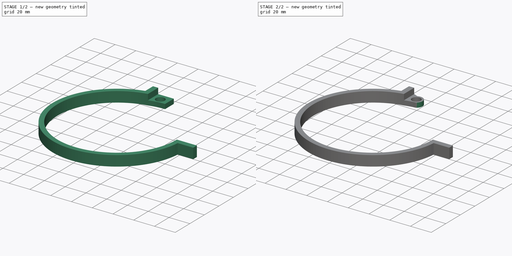
[diagram: build sequence overview — one tinted view per stage of 2, left to right]
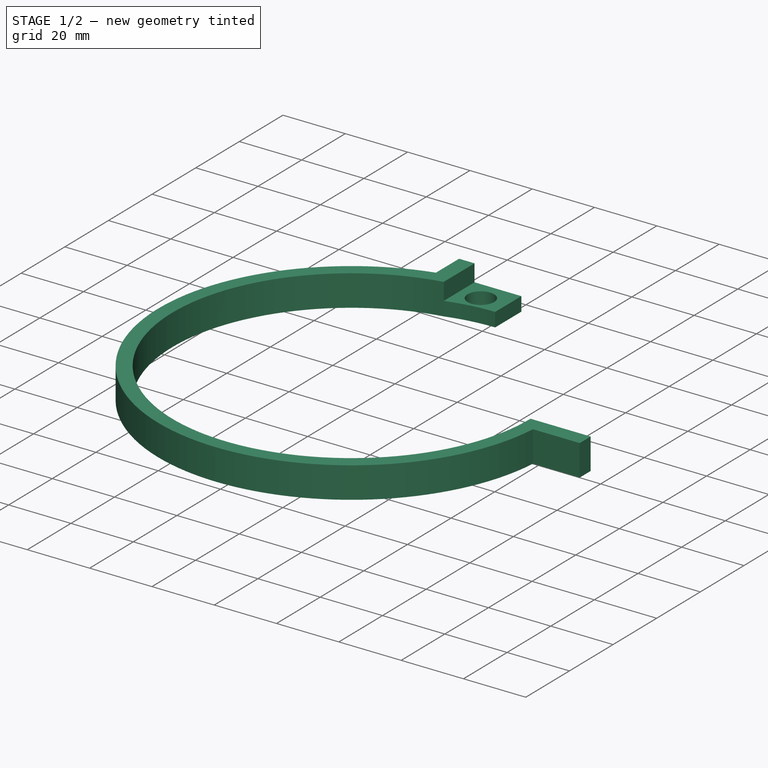
[diagram: stage 1 of 2 — iso view after this stage's code; geometry added in this stage tinted green]
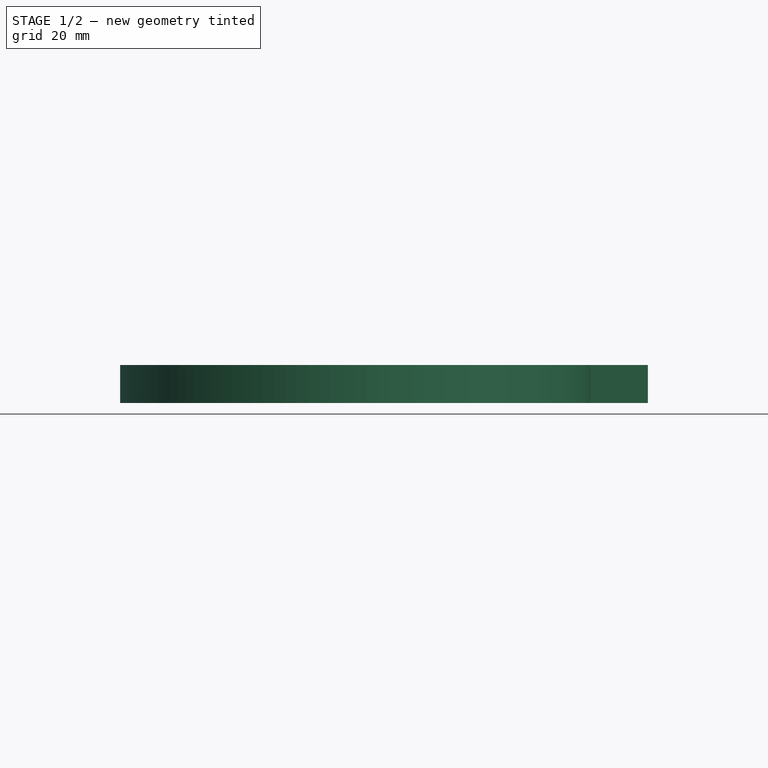
[diagram: stage 1 of 2 — front view after this stage's code; geometry added in this stage tinted green]
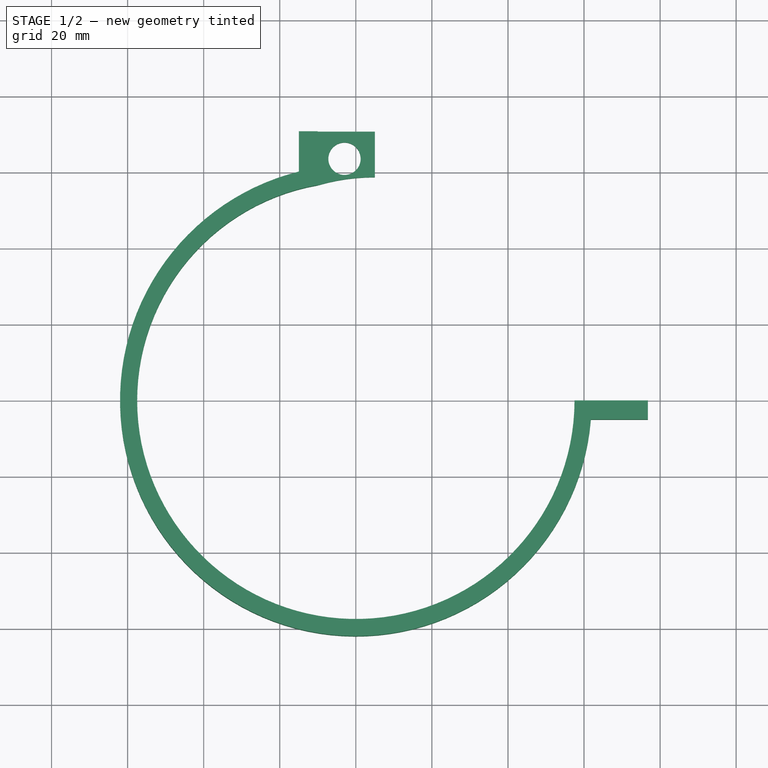
[diagram: stage 1 of 2 — top view after this stage's code; geometry added in this stage tinted green]
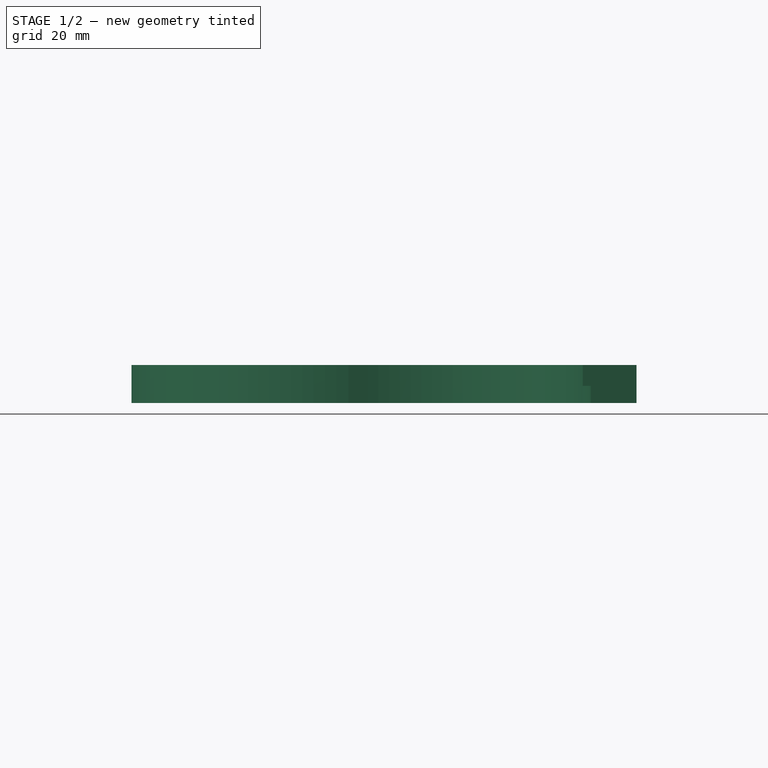
[diagram: stage 1 of 2 — right view after this stage's code; geometry added in this stage tinted green]
FCSTD DOCUMENT  (FreeCAD 1.0R39109 (Git))
Label: close_winds2
License: All rights reserved
LicenseURL: https://en.wikipedia.org/wiki/All_rights_reserved
objects: Sketcher::SketchObject×3, PartDesign::Pocket×2, PartDesign::Pad×1, PartDesign::Body×1
note: 16 computed .brp shape members not serialized (recipe doc carries the construction recipe); baked Part::Feature solids carry a one-line shape summary decoded from their .brp

FEATURE [Sketcher::SketchObject] Sketch
  ArcFitTolerance = 1e-06
  AttachmentSupport = -> [XY_Plane]
  FullyConstrained = true
  MakeInternals = false
  MapMode = 5
  sketch-geometry (19):
    g0: ArcOfCircle [constr] CenterX=0 CenterY=-2.82e-14 CenterZ=0 NormalX=0 NormalY=0 NormalZ=1 AngleXU=0 Radius=57.5 StartAngle=0 EndAngle=1.74533
    g1: LineSegment [constr] StartX=57.5 StartY=-2.82e-14 StartZ=0 EndX=76.7981 EndY=-2.82e-14 EndZ=0
    g2: LineSegment [constr] StartX=76.7981 StartY=-2.82e-14 StartZ=0 EndX=76.7981 EndY=5 EndZ=0
    g3: LineSegment [constr] StartX=76.7981 StartY=5 StartZ=0 EndX=61.7981 EndY=5 EndZ=0
    g4: LineSegment [constr] StartX=-9.98476 StartY=56.6264 StartZ=0 EndX=-9.98476 EndY=70.6264 EndZ=0
    g5: LineSegment [constr] StartX=-9.98476 StartY=70.6264 StartZ=0 EndX=0 EndY=70.6264 EndZ=0
    g6: LineSegment [constr] StartX=0 StartY=70.6264 StartZ=0 EndX=11.4479 EndY=60.9339 EndZ=0
    g7: ArcOfCircle [constr] CenterX=0 CenterY=-2.82e-14 CenterZ=0 NormalX=0 NormalY=0 NormalZ=1 AngleXU=0 Radius=62 StartAngle=0.0807328 EndAngle=1.38509
    g8: Circle [constr] CenterX=-2.98476 CenterY=63.6264 CenterZ=0 NormalX=0 NormalY=0 NormalZ=1 AngleXU=0 Radius=4.25
    g9: ArcOfCircle CenterX=0 CenterY=-2.82e-14 CenterZ=0 NormalX=0 NormalY=0 NormalZ=1 AngleXU=0 Radius=57.5 StartAngle=1.74533 EndAngle=6.28319
    g10: LineSegment StartX=57.5 StartY=-2.82e-14 StartZ=0 EndX=76.7981 EndY=-2.82e-14 EndZ=0
    g11: LineSegment StartX=76.7981 StartY=-2.82e-14 StartZ=0 EndX=76.7981 EndY=-5 EndZ=0
    g12: LineSegment StartX=76.7981 StartY=-5 StartZ=0 EndX=61.7981 EndY=-5 EndZ=0
    g13: ArcOfCircle CenterX=0 CenterY=-2.82e-14 CenterZ=0 NormalX=0 NormalY=0 NormalZ=1 AngleXU=0 Radius=62 StartAngle=1.8149 EndAngle=6.20245
    g14: Circle CenterX=-2.98476 CenterY=63.6264 CenterZ=0 NormalX=0 NormalY=0 NormalZ=1 AngleXU=0 Radius=4.25
    g15: LineSegment StartX=-14.9848 StartY=60.1619 StartZ=0 EndX=-14.9848 EndY=70.7572 EndZ=0
    g16: LineSegment StartX=-14.9848 StartY=70.7572 StartZ=0 EndX=5.01524 EndY=70.7572 EndZ=0
    g17: LineSegment StartX=5.01524 StartY=70.7572 StartZ=0 EndX=5.01524 EndY=58.7572 EndZ=0
    g18: ArcOfCircle CenterX=5 CenterY=5 CenterZ=0 NormalX=0 NormalY=0 NormalZ=1 AngleXU=0 Radius=53.7572 StartAngle=1.57051 EndAngle=1.85329
  constraints (57):
    c: Angle(g0) = 1.74533
    c: Coincident(g0,g-1)
    c: PointOnObject(g0,g-1)
    c: Radius(g0) = 57.5
    c: Coincident(g0,g1)
    c: Coincident(g1,g2)
    c: Coincident(g2,g3)
    c: Coincident(g0,g4)
    c: Coincident(g4,g5)
    c: Horizontal(g5)
    c: Coincident(g5,g6)
    c: Coincident(g7,g0)
    c: Coincident(g7,g3)
    c: Coincident(g7,g6)
    c: Diameter(g8) = 8.5
    c: DistanceX(g4,g8) = 7
    c: DistanceY(g8,g4) = 7
    c: Distance(g6,g6) = 15
    c: Vertical(g4)
    c: DistanceY(g4,g4) = 14
    c: Horizontal(g1)
    c: Horizontal(g3)
    c: Radius(g7) = 62
    c: DistanceX(g3,g3) = 15
    c: DistanceY(g2,g2) = 5
    c: Vertical(g2)
    c: Equal(g9,g0)
    c: Coincident(g9,g0)
    c: Angle(g9) = 4.53786
    c: Horizontal(g9,g0)
    c: Coincident(g9,g10)
    c: Coincident(g10,g11)
    c: Vertical(g11)
    c: Coincident(g11,g12)
    c: Horizontal(g10)
    c: Horizontal(g12)
    c: Vertical(g10,g2)
    c: Equal(g11,g2)
    c: Coincident(g13,g0)
    c: Coincident(g13,g12)
    c: Vertical(g12,g3)
    c: Coincident(g14,g8)
    c: Diameter(g14) = 8.5
    c: Coincident(g15,g13)
    c: Vertical(g15)
    c: Coincident(g15,g16)
    c: Horizontal(g16)
    c: Coincident(g16,g17)
    c: Vertical(g17)
    c: Coincident(g18,g17)
    c: Coincident(g18,g9)
    c: DistanceY(g-1,g18) = 5
    c: DistanceX(g-1,g18) = 5
    c: DistanceX(g13,g0) = 5
    c: DistanceX(g16,g16) = 20
    c: DistanceY(g17,g17) = 12
    c: PointOnObject(g5,g-2)
FEATURE [PartDesign::Pad] Pad
  Direction = (0,0,1)
  Length = 10
  Length2 = 10
  Profile = -> Sketch
  ReferenceAxis = -> Sketch [N_Axis]
  Refine = true
  Suppressed = false
  Type = 0
FEATURE [Sketcher::SketchObject] Sketch001
  ArcFitTolerance = 1e-06
  AttachmentSupport = -> [Pad]
  FullyConstrained = true
  MakeInternals = false
  MapMode = 5
  Placement = pos=(0,0,10) rot=(0,0,1;0rad)
  sketch-geometry (4):
    g0: ArcOfCircle CenterX=5 CenterY=5 CenterZ=0 NormalX=0 NormalY=0 NormalZ=1 AngleXU=0 Radius=53.5 StartAngle=1.56893 EndAngle=1.85516
    g1: LineSegment StartX=-10.0093 StartY=56.3514 StartZ=0 EndX=-10.0093 EndY=70.9999 EndZ=0
    g2: LineSegment StartX=-10.0093 StartY=70.9999 StartZ=0 EndX=5.1 EndY=70.9999 EndZ=0
    g3: LineSegment StartX=5.1 StartY=70.9999 StartZ=0 EndX=5.1 EndY=58.4999 EndZ=0
  constraints (13):
    c: DistanceX(g-1,g0) = 5
    c: DistanceY(g-1,g0) = 5
    c: Radius(g0) = 53.5
    c: Angle(g0) = 0.286234
    c: Coincident(g0,g1)
    c: Coincident(g1,g2)
    c: Horizontal(g2)
    c: Coincident(g2,g3)
    c: Coincident(g3,g0)
    c: Vertical(g3)
    c: DistanceX(g-1,g0) = 5.1
    c: DistanceY(g3,g3) = 12.5
    c: Vertical(g1)
FEATURE [PartDesign::Pocket] Pocket
  BaseFeature = -> Pad
  Direction = (0,0,-1)
  Length = 5.5
  Length2 = 5
  Profile = -> Sketch001
  ReferenceAxis = -> Sketch001 [N_Axis]
  Refine = true
  Suppressed = false
  Type = 0
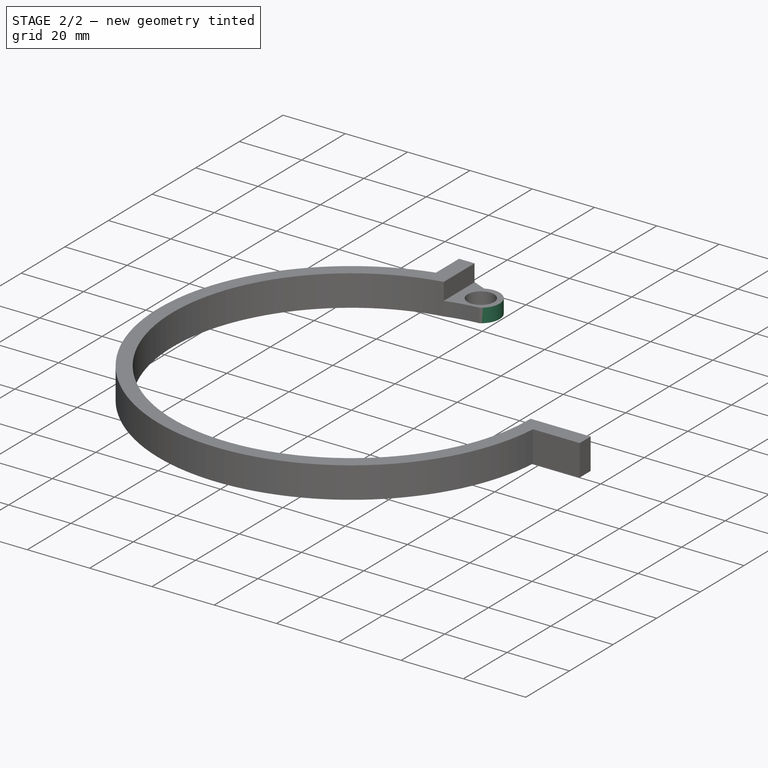
[diagram: stage 2 of 2 — iso view after this stage's code; geometry added in this stage tinted green]
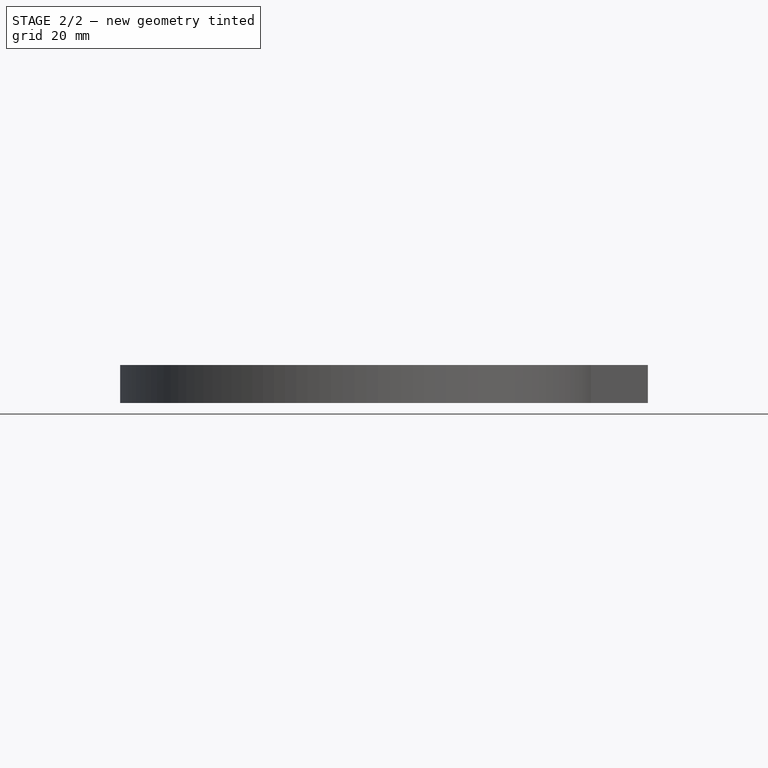
[diagram: stage 2 of 2 — front view after this stage's code; geometry added in this stage tinted green]
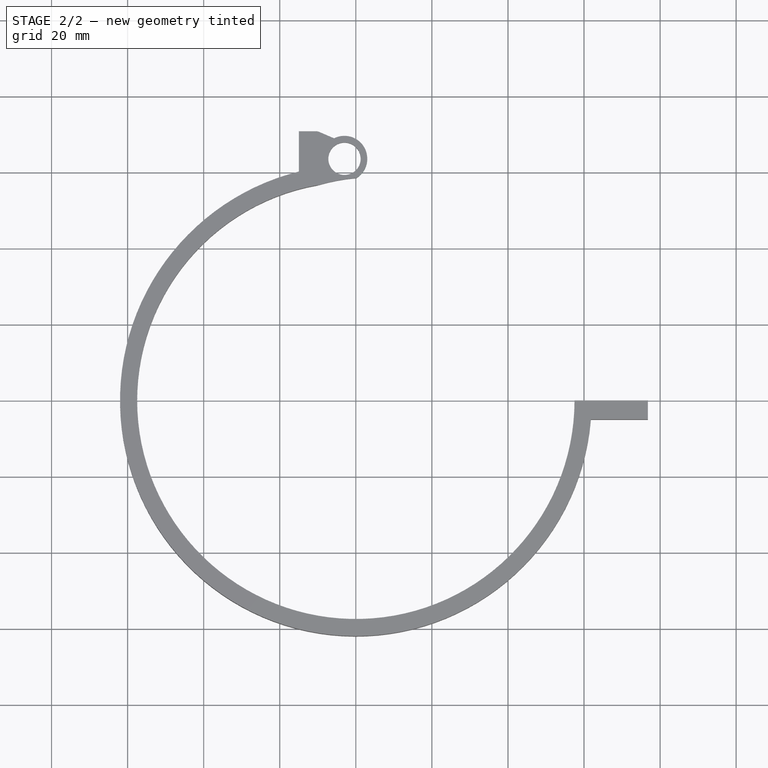
[diagram: stage 2 of 2 — top view after this stage's code; geometry added in this stage tinted green]
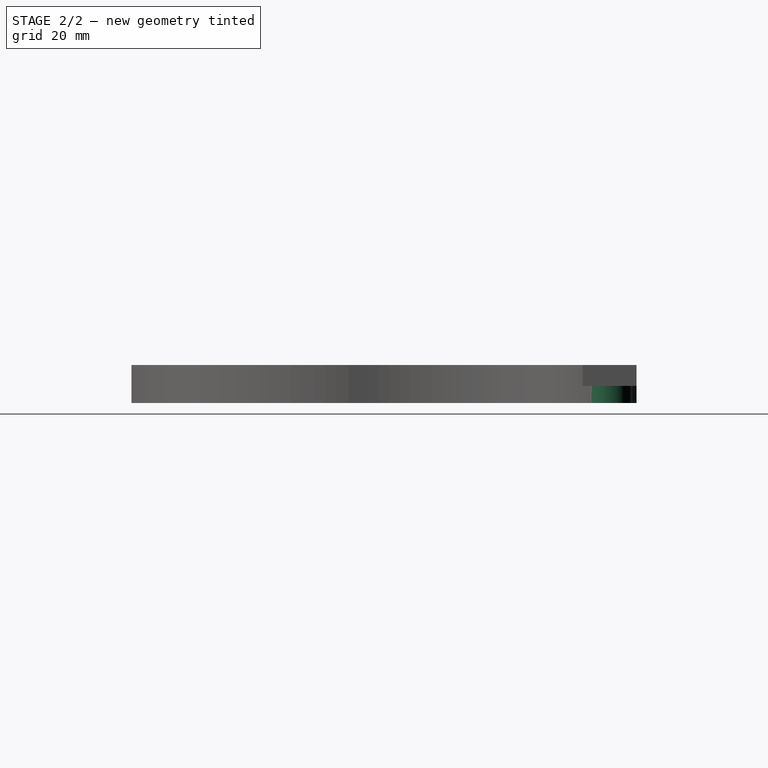
[diagram: stage 2 of 2 — right view after this stage's code; geometry added in this stage tinted green]
FEATURE [Sketcher::SketchObject] Sketch002
  ArcFitTolerance = 1e-06
  AttachmentSupport = -> [Pocket]
  FullyConstrained = true
  MakeInternals = false
  MapMode = 5
  Placement = pos=(0,0,4.5) rot=(0,0,1;0rad)
  sketch-geometry (6):
    g0: Circle [constr] CenterX=-3 CenterY=63.65 CenterZ=0 NormalX=0 NormalY=0 NormalZ=1 AngleXU=0 Radius=4.25
    g1: ArcOfCircle CenterX=-3 CenterY=63.65 CenterZ=0 NormalX=0 NormalY=0 NormalZ=1 AngleXU=0 Radius=6 StartAngle=5.05223 EndAngle=8.32332
    g2: LineSegment StartX=-5.71379 StartY=69.0012 StartZ=0 EndX=-11.5 EndY=71.4931 EndZ=0
    g3: LineSegment StartX=-11.5 StartY=71.4931 StartZ=0 EndX=6 EndY=71.4931 EndZ=0
    g4: LineSegment StartX=6 StartY=71.4931 StartZ=0 EndX=6 EndY=57.9931 EndZ=0
    g5: LineSegment StartX=6 StartY=57.9931 StartZ=0 EndX=-1 EndY=57.9931 EndZ=0
  constraints (18):
    c: Diameter(g0) = 8.5
    c: DistanceX(g0,g-1) = 3
    c: DistanceY(g-1,g0) = 63.65
    c: Coincident(g1,g0)
    c: Coincident(g2,g1)
    c: Coincident(g2,g3)
    c: Horizontal(g3)
    c: Coincident(g3,g4)
    c: Vertical(g4)
    c: Coincident(g4,g5)
    c: Coincident(g5,g1)
    c: Horizontal(g5)
    c: Radius(g1) = 6
    c: Distance(g1,g-2) = 1
    c: DistanceX(g5,g5) = 7
    c: DistanceY(g4,g4) = 13.5
    c: DistanceX(g3,g3) = 17.5
    c: Distance(g2,g2) = 6.3
FEATURE [PartDesign::Pocket] Pocket001
  BaseFeature = -> Pocket
  Direction = (0,0,-1)
  Length = 5
  Length2 = 5
  Profile = -> Sketch002
  ReferenceAxis = -> Sketch002 [N_Axis]
  Refine = true
  Suppressed = false
  Type = 0
FEATURE [PartDesign::Body] Body
  AllowCompound = false
  Group = -> [Sketch,Pad,Sketch001,Pocket,Sketch002,Pocket001]
  Origin = -> Origin
  Tip = -> Pocket001
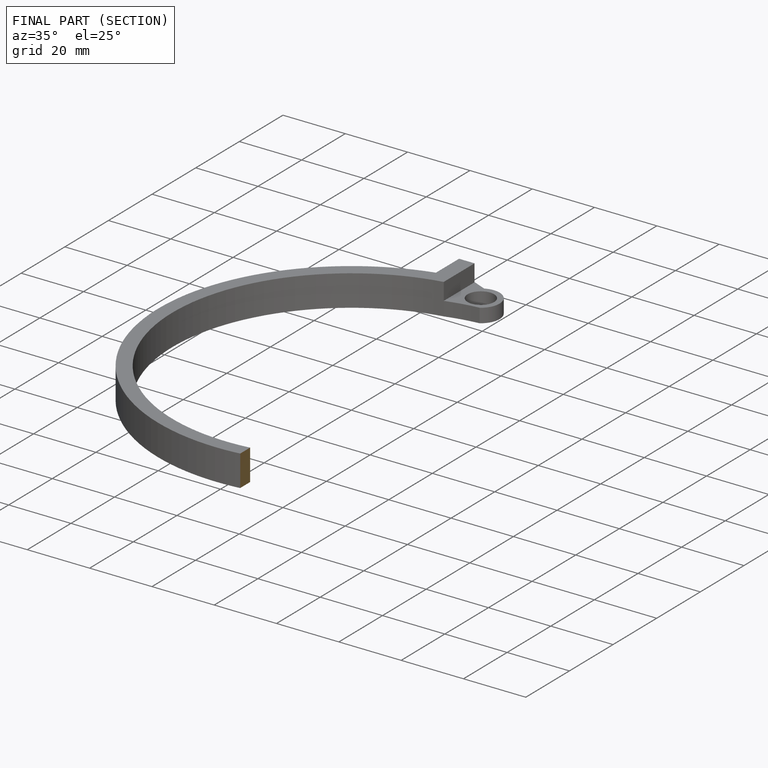
[diagram: finished part — half-section view (interior)]
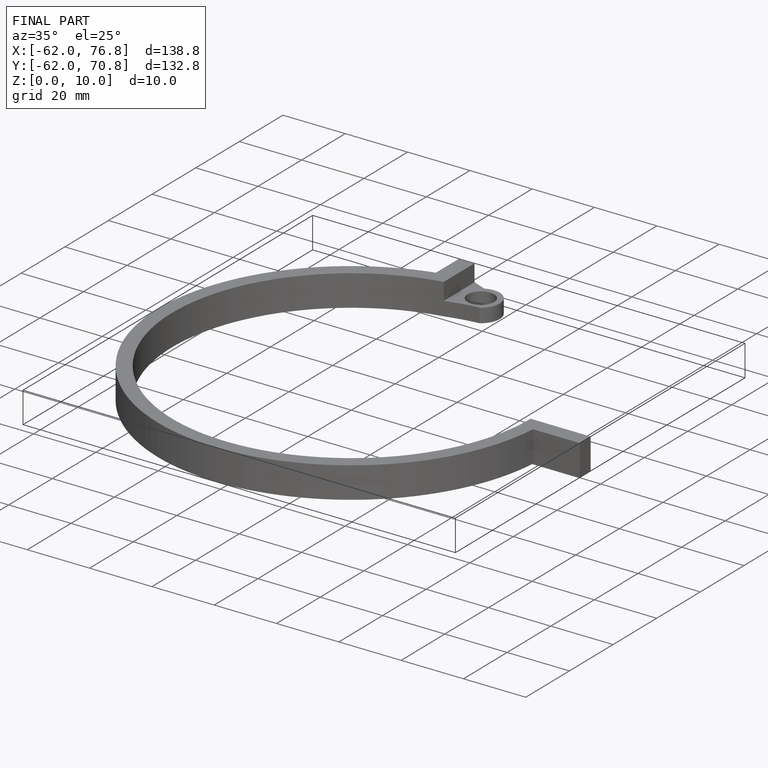
[diagram: finished part — iso view with bounding-box wireframe]
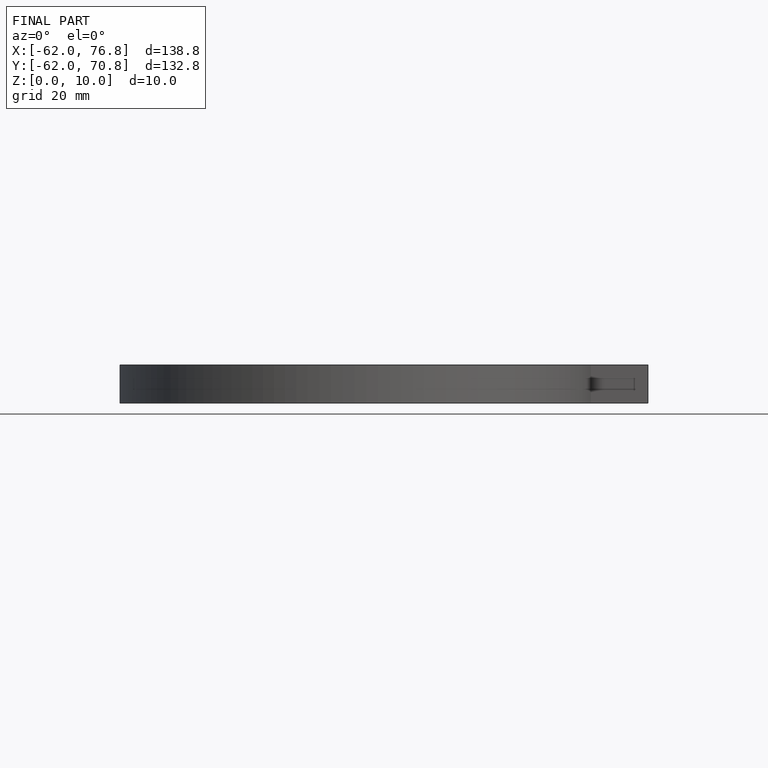
[diagram: finished part — front view with bounding-box wireframe]
